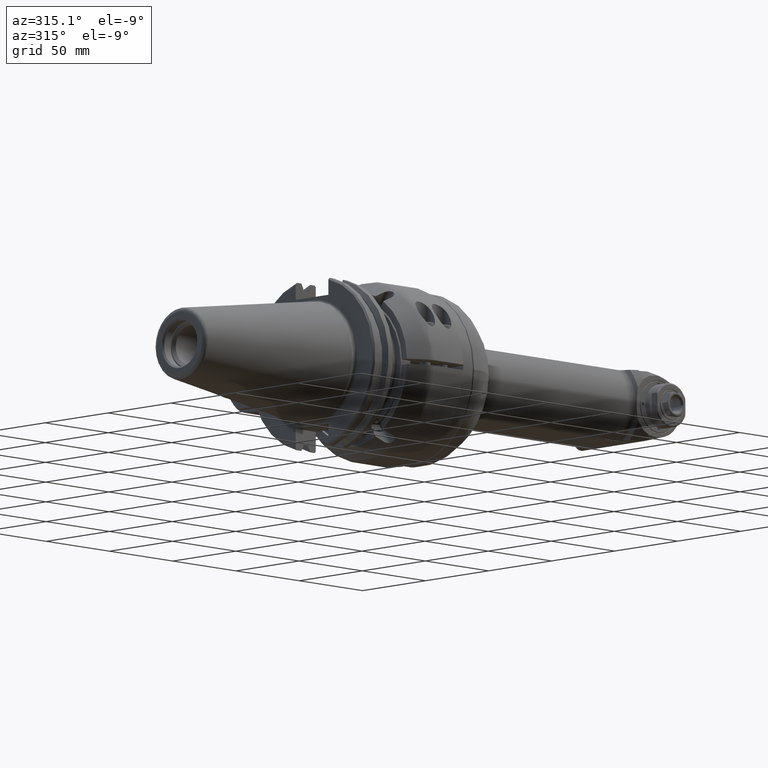
[diagram: clean part render]
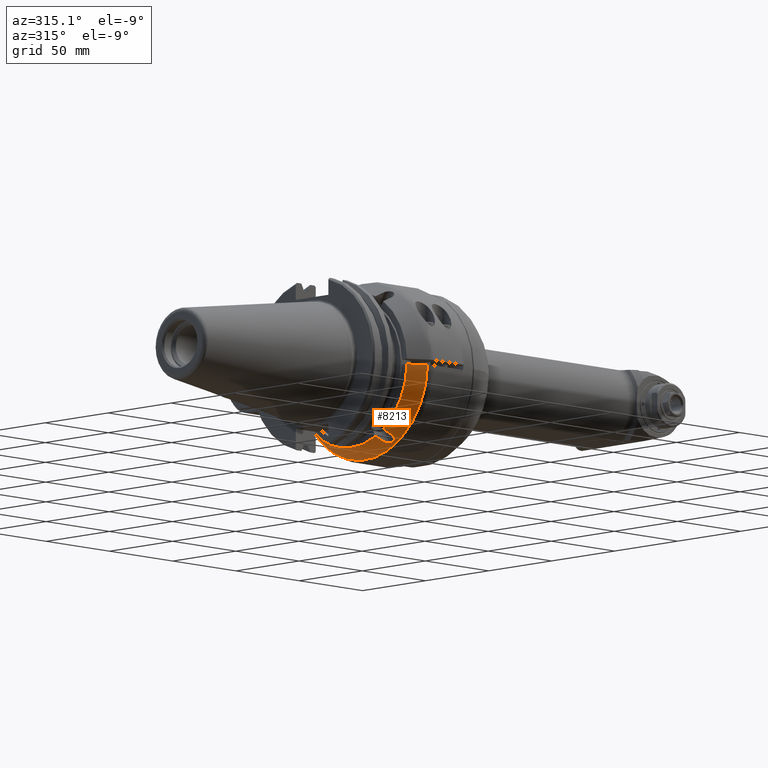
[diagram: same view with one face highlighted and labeled with its STEP entity id]
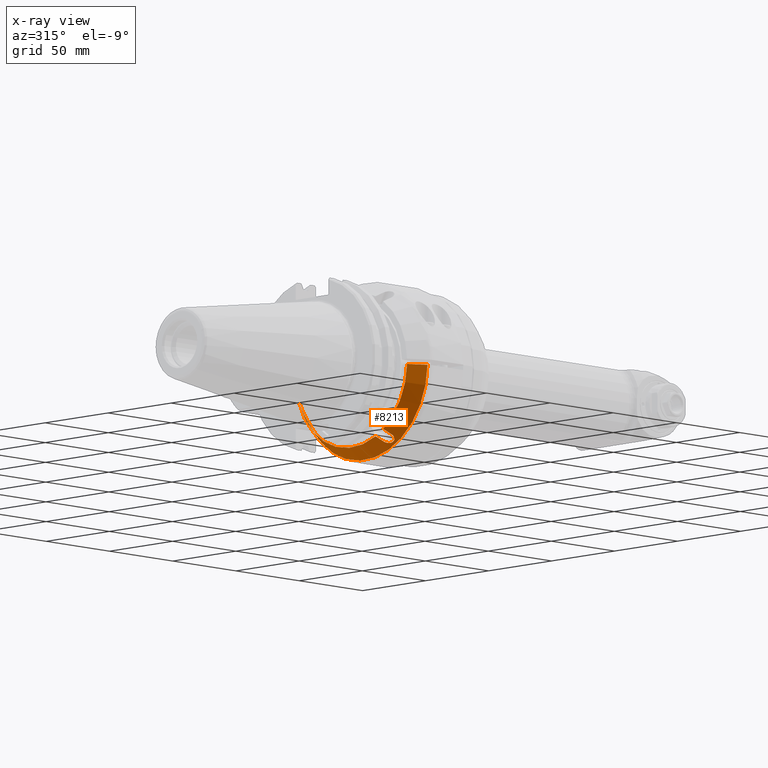
[diagram: x-ray of the same camera — body ghosted, the highlighted face saturated]
A machine part, auxiliary view. The second image highlights one B-rep face of the part: STEP entity #8213.
The next image is the same camera in x-ray: the body ghosted, the highlighted face saturated — about 1% of this face is hidden behind the body in this view.
In plain terms, the highlighted conical surface has half-angle 30 deg.
Its self-contained STEP definition (entity closure, byte-faithful):
#582=(
BOUNDED_CURVE()
B_SPLINE_CURVE(2,(#12140,#12141,#12142),.UNSPECIFIED.,.F.,.F.)
B_SPLINE_CURVE_WITH_KNOTS((3,3),(-2.43290769105801,-0.320305328668483),
 .UNSPECIFIED.)
CURVE()
GEOMETRIC_REPRESENTATION_ITEM()
RATIONAL_B_SPLINE_CURVE((1.03252076511009,1.03062027413364,1.00749895945509))
REPRESENTATION_ITEM('')
);
#717=B_SPLINE_CURVE_WITH_KNOTS('',3,(#12281,#12282,#12283,#12284,#12285,
#12286,#12287,#12288,#12289,#12290),.UNSPECIFIED.,.F.,.F.,(4,3,3,4),(0.,
0.3333333333333,0.6666666666667,1.),.UNSPECIFIED.);
#720=B_SPLINE_CURVE_WITH_KNOTS('',3,(#12343,#12344,#12345,#12346,#12347,
#12348,#12349,#12350,#12351,#12352,#12353,#12354,#12355,#12356,#12357,#12358,
#12359,#12360),.UNSPECIFIED.,.F.,.F.,(4,2,2,2,2,2,2,2,4),(1.11206982951625,
1.24885677734264,1.4029266724495,1.5444028479349,1.68587902342029,1.82735519890569,
1.96883137439109,2.12290126949794,2.25968821732541),.UNSPECIFIED.);
#722=B_SPLINE_CURVE_WITH_KNOTS('',3,(#12382,#12383,#12384,#12385,#12386,
#12387,#12388,#12389,#12390,#12391),.UNSPECIFIED.,.F.,.F.,(4,3,3,4),(0.,
0.3333333333333,0.6666666666667,1.),.UNSPECIFIED.);
#723=B_SPLINE_CURVE_WITH_KNOTS('',3,(#12397,#12398,#12399,#12400,#12401,
#12402,#12403,#12404,#12405,#12406),.UNSPECIFIED.,.F.,.F.,(4,3,3,4),(0.,
0.3333333333333,0.6666666666667,1.),.UNSPECIFIED.);
#1043=CONICAL_SURFACE('',#8833,46.96410161514,0.523598775598299);
#1150=FACE_OUTER_BOUND('',#1642,.T.);
#1642=EDGE_LOOP('',(#5766,#5767,#5768,#5769,#5770,#5771,#5772,#5773));
#3303=CIRCLE('',#8834,49.92820323028);
#3304=CIRCLE('',#8835,44.);
#3305=CIRCLE('',#8836,44.);
#3697=VERTEX_POINT('',#12128);
#3698=VERTEX_POINT('',#12139);
#3721=VERTEX_POINT('',#12278);
#3722=VERTEX_POINT('',#12280);
#3735=VERTEX_POINT('',#12341);
#3736=VERTEX_POINT('',#12342);
#3740=VERTEX_POINT('',#12381);
#3741=VERTEX_POINT('',#12395);
#4487=EDGE_CURVE('',#3697,#3698,#582,.T.);
#4515=EDGE_CURVE('',#3722,#3721,#717,.T.);
#4533=EDGE_CURVE('',#3735,#3736,#720,.F.);
#4540=EDGE_CURVE('',#3735,#3740,#722,.T.);
#4542=EDGE_CURVE('',#3722,#3697,#3303,.T.);
#4543=EDGE_CURVE('',#3741,#3721,#3304,.T.);
#4544=EDGE_CURVE('',#3741,#3736,#723,.T.);
#4545=EDGE_CURVE('',#3698,#3740,#3305,.T.);
#5766=ORIENTED_EDGE('',*,*,#4542,.F.);
#5767=ORIENTED_EDGE('',*,*,#4515,.T.);
#5768=ORIENTED_EDGE('',*,*,#4543,.F.);
#5769=ORIENTED_EDGE('',*,*,#4544,.T.);
#5770=ORIENTED_EDGE('',*,*,#4533,.F.);
#5771=ORIENTED_EDGE('',*,*,#4540,.T.);
#5772=ORIENTED_EDGE('',*,*,#4545,.F.);
#5773=ORIENTED_EDGE('',*,*,#4487,.F.);
#8213=ADVANCED_FACE('',(#1150),#1043,.T.);
#8833=AXIS2_PLACEMENT_3D('',#12393,#9818,#9819);
#8834=AXIS2_PLACEMENT_3D('',#12394,#9820,#9821);
#8835=AXIS2_PLACEMENT_3D('',#12396,#9822,#9823);
#8836=AXIS2_PLACEMENT_3D('',#12407,#9824,#9825);
#9818=DIRECTION('center_axis',(1.,0.,0.));
#9819=DIRECTION('ref_axis',(0.,-1.,0.));
#9820=DIRECTION('center_axis',(1.,0.,0.));
#9821=DIRECTION('ref_axis',(0.,-0.999548602989596,-0.0300431400080999));
#9822=DIRECTION('center_axis',(-1.,0.,0.));
#9823=DIRECTION('ref_axis',(0.,-0.567304004296905,-0.823508449688707));
#9824=DIRECTION('center_axis',(-1.,0.,0.));
#9825=DIRECTION('ref_axis',(0.,0.948863636363632,-0.315686235979311));
#12128=CARTESIAN_POINT('',(-41.23205080757,41.75,-27.38180011986));
#12139=CARTESIAN_POINT('',(-51.5,41.74999999999,-13.89019438316));
#12140=CARTESIAN_POINT('Ctrl Pts',(-41.2320508075673,41.75,-27.3818001198562));
#12141=CARTESIAN_POINT('Ctrl Pts',(-48.0442956678564,41.75,-20.2102413126131));
#12142=CARTESIAN_POINT('Ctrl Pts',(-51.4999999999632,41.75,-13.8901943831554));
#12278=CARTESIAN_POINT('',(-51.5,-43.97442438509,-1.5));
#12280=CARTESIAN_POINT('',(-41.2320595617708,-49.9056607292726,-1.50000007595379));
#12281=CARTESIAN_POINT('Ctrl Pts',(-41.23206831446,-49.90565567486,-1.5));
#12282=CARTESIAN_POINT('Ctrl Pts',(-42.37293045262,-49.24668115316,-1.5));
#12283=CARTESIAN_POINT('Ctrl Pts',(-43.5138242319948,-48.5876765558151,
-1.5));
#12284=CARTESIAN_POINT('Ctrl Pts',(-44.6547122553555,-47.928662020786,-1.5));
#12285=CARTESIAN_POINT('Ctrl Pts',(-45.7956002787165,-47.2696474857567,
-1.5));
#12286=CARTESIAN_POINT('Ctrl Pts',(-46.9364825460635,-46.6106230130433,
-1.5));
#12287=CARTESIAN_POINT('Ctrl Pts',(-48.077363540237,-45.9515842405615,-1.5));
#12288=CARTESIAN_POINT('Ctrl Pts',(-49.2182445344102,-45.2925454680799,
-1.5));
#12289=CARTESIAN_POINT('Ctrl Pts',(-50.35912425541,-44.63349239583,-1.5));
#12290=CARTESIAN_POINT('Ctrl Pts',(-51.5,-43.97442438509,-1.5));
#12341=CARTESIAN_POINT('',(-46.5,-20.34687855495,-42.24182743261));
#12342=CARTESIAN_POINT('',(-46.5,-26.40905638145,-38.74182743261));
#12343=CARTESIAN_POINT('Ctrl Pts',(-46.5000000000002,-26.4090563814455,
-38.7418274326129));
#12344=CARTESIAN_POINT('Ctrl Pts',(-46.0992085079157,-26.5250786273062,
-38.9427838572518));
#12345=CARTESIAN_POINT('Ctrl Pts',(-45.6780271021362,-26.5877455833705,
-39.1945532832522));
#12346=CARTESIAN_POINT('Ctrl Pts',(-44.8336229766582,-26.5711996809164,
-39.7934207779667));
#12347=CARTESIAN_POINT('Ctrl Pts',(-44.416786404141,-26.4721822625297,-40.1489075806805));
#12348=CARTESIAN_POINT('Ctrl Pts',(-43.7689100689263,-26.1383338430384,
-40.8117265913294));
#12349=CARTESIAN_POINT('Ctrl Pts',(-43.4858969585476,-25.8928265156274,
-41.1623315039927));
#12350=CARTESIAN_POINT('Ctrl Pts',(-43.1011571537054,-25.2551263794943,
-41.8163473322267));
#12351=CARTESIAN_POINT('Ctrl Pts',(-43.,-24.8621451840586,-42.1193241407055));
#12352=CARTESIAN_POINT('Ctrl Pts',(-43.,-24.0453321040545,-42.5909113923235));
#12353=CARTESIAN_POINT('Ctrl Pts',(-43.1011571537054,-23.5864558934365,
-42.779754686541));
#12354=CARTESIAN_POINT('Ctrl Pts',(-43.4858969585476,-22.7012115036422,
-43.0050112903121));
#12355=CARTESIAN_POINT('Ctrl Pts',(-43.7689100689263,-22.2748250788787,
-43.0423244163336));
#12356=CARTESIAN_POINT('Ctrl Pts',(-44.416786404141,-21.5338827677997,-43.000036123302));
#12357=CARTESIAN_POINT('Ctrl Pts',(-44.8336229766582,-21.1765134567462,
-42.908044321685));
#12358=CARTESIAN_POINT('Ctrl Pts',(-45.6780271021394,-20.6496060415937,
-42.6229397461805));
#12359=CARTESIAN_POINT('Ctrl Pts',(-46.0992085079223,-20.4629008008123,
-42.4427838572491));
#12360=CARTESIAN_POINT('Ctrl Pts',(-46.5000000000096,-20.3468785549518,
-42.2418274326083));
#12381=CARTESIAN_POINT('',(-51.5,-18.89919836257,-39.7343717863));
#12382=CARTESIAN_POINT('Ctrl Pts',(-46.5000000000021,-20.3468785549516,
-42.2418274326133));
#12383=CARTESIAN_POINT('Ctrl Pts',(-47.0555636796788,-20.1860524218991,
-41.9632683989681));
#12384=CARTESIAN_POINT('Ctrl Pts',(-47.6111251834313,-20.0252176577258,
-41.6846944543344));
#12385=CARTESIAN_POINT('Ctrl Pts',(-48.1666839961781,-19.864373839952,-41.4061048113106));
#12386=CARTESIAN_POINT('Ctrl Pts',(-48.7222428089251,-19.7035300221781,
-41.1275151682867));
#12387=CARTESIAN_POINT('Ctrl Pts',(-49.2777989309903,-19.5426771511998,
-40.8489098273047));
#12388=CARTESIAN_POINT('Ctrl Pts',(-49.8333517949414,-19.381814745264,-40.5702879469552));
#12389=CARTESIAN_POINT('Ctrl Pts',(-50.3889046588924,-19.2209523393283,
-40.2916660666057));
#12390=CARTESIAN_POINT('Ctrl Pts',(-50.9444542651007,-19.0600803989606,
-40.0130276473512));
#12391=CARTESIAN_POINT('Ctrl Pts',(-51.5000000000014,-18.8991983625711,
-39.7343717863022));
#12393=CARTESIAN_POINT('Origin',(-46.36602540378,0.,0.));
#12394=CARTESIAN_POINT('Origin',(-41.23205080757,0.,0.));
#12395=CARTESIAN_POINT('',(-51.5,-24.96137618907,-36.2343717863));
#12396=CARTESIAN_POINT('Origin',(-51.5,0.,0.));
#12397=CARTESIAN_POINT('Ctrl Pts',(-51.4999999999995,-24.9613761890695,
-36.2343717862992));
#12398=CARTESIAN_POINT('Ctrl Pts',(-50.9444542651011,-25.1222582254511,
-36.5130276473516));
#12399=CARTESIAN_POINT('Ctrl Pts',(-50.3889046588926,-25.2831302048165,
-36.7916660440905));
#12400=CARTESIAN_POINT('Ctrl Pts',(-49.8333517949413,-25.4439926282826,
-37.070287914319));
#12401=CARTESIAN_POINT('Ctrl Pts',(-49.2777989309897,-25.6048550517487,
-37.3489097845476));
#12402=CARTESIAN_POINT('Ctrl Pts',(-48.7222428089239,-25.7657079191777,
-37.6275151275794));
#12403=CARTESIAN_POINT('Ctrl Pts',(-48.166683996177,-25.9265517183818,-37.9061047813243));
#12404=CARTESIAN_POINT('Ctrl Pts',(-47.6111251834304,-26.0873955175858,
-38.1846944350692));
#12405=CARTESIAN_POINT('Ctrl Pts',(-47.0555636796788,-26.2482302483888,
-38.4632683989682));
#12406=CARTESIAN_POINT('Ctrl Pts',(-46.5,-26.40905638145,-38.74182743261));
#12407=CARTESIAN_POINT('Origin',(-51.5,0.,0.));